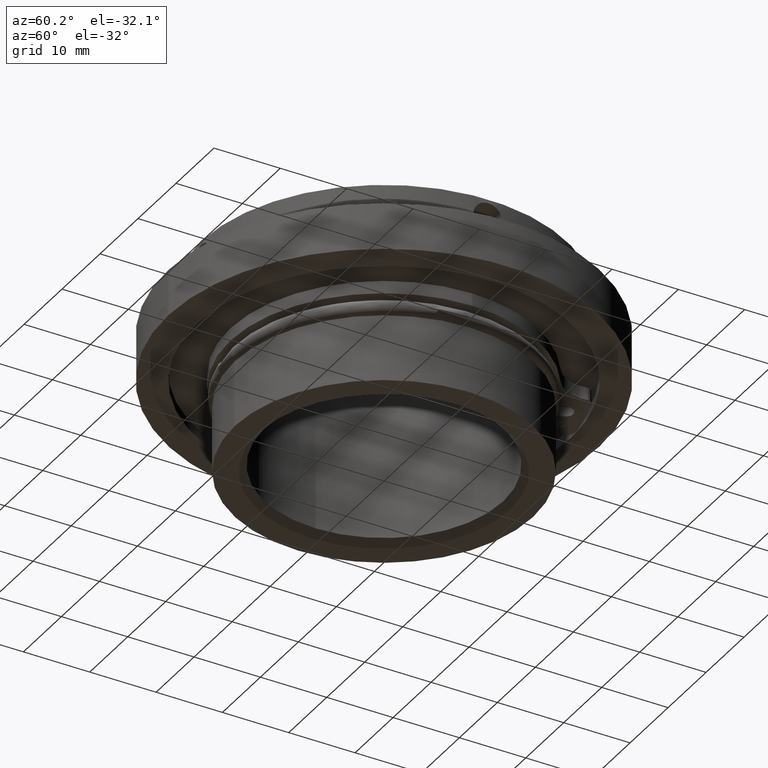
[diagram: clean part render]
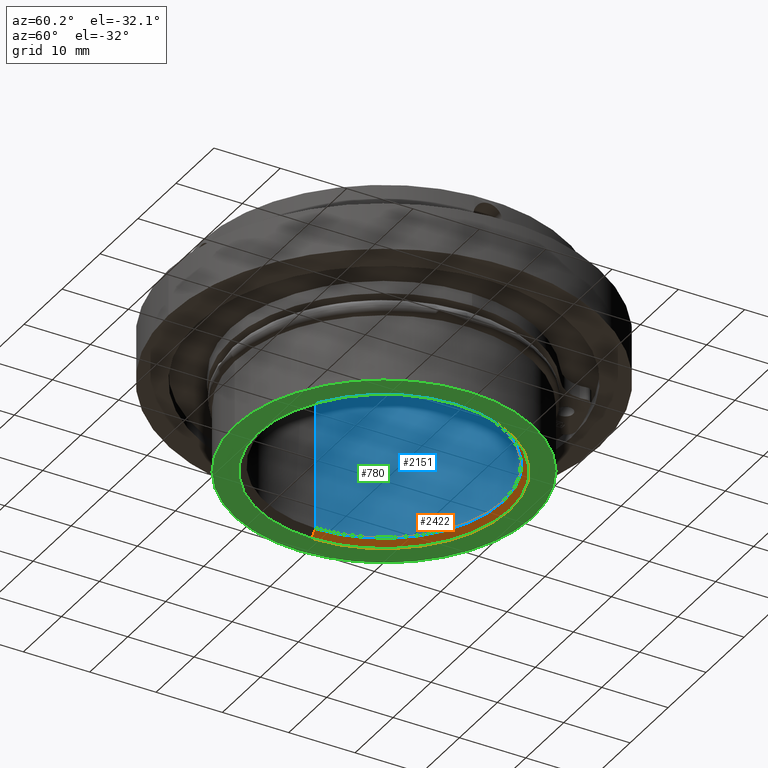
[diagram: same view with three faces highlighted in distinct colors, each labeled with its STEP entity id]
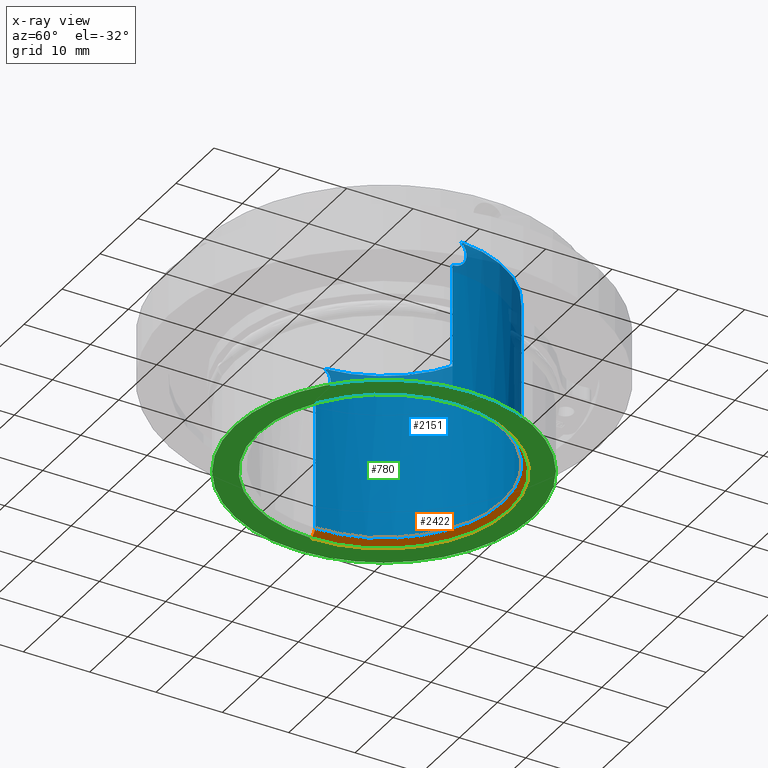
[diagram: x-ray of the same camera — body ghosted, the three highlighted faces saturated]
A machine part, auxiliary view with three faces highlighted in distinct colors.
The next image is the same camera in x-ray (body ghosted, the three faces saturated) — at least one of them is partly hidden behind the body in this view.
Their STEP definitions:

[orange] entity #2422 — the highlighted conical surface has half-angle 45 deg.
#215 = ORIENTED_EDGE ( 'NONE', *, *, #15960, .F. ) ;
#762 = AXIS2_PLACEMENT_3D ( 'NONE', #16104, #8063, #13628 ) ;
#814 = FACE_OUTER_BOUND ( 'NONE', #4468, .T. ) ;
#1090 = CARTESIAN_POINT ( 'NONE',  ( -18.99999999999998224, 0.000000000000000000, -13.50000000000000000 ) ) ;
#1169 = VERTEX_POINT ( 'NONE', #10040 ) ;
#1447 = LINE ( 'NONE', #1090, #16803 ) ;
#1481 = CARTESIAN_POINT ( 'NONE',  ( 18.99999999999998224, 2.326828918379968998E-15, -13.50000000000000000 ) ) ;
#1837 = CARTESIAN_POINT ( 'NONE',  ( 0.000000000000000000, 0.000000000000000000, -13.50000000000000000 ) ) ;
#2111 = CIRCLE ( 'NONE', #12964, 18.99999999999998224 ) ;
#2422 = ADVANCED_FACE ( 'NONE', ( #814 ), #6733, .F. ) ;
#2692 = EDGE_CURVE ( 'NONE', #14178, #1169, #2111, .T. ) ;
#2799 = VERTEX_POINT ( 'NONE', #14723 ) ;
#3476 = EDGE_CURVE ( 'NONE', #5551, #1169, #1447, .T. ) ;
#4468 = EDGE_LOOP ( 'NONE', ( #8090, #215, #9733, #6738 ) ) ;
#5551 = VERTEX_POINT ( 'NONE', #11569 ) ;
#6630 = VECTOR ( 'NONE', #9172, 1000.000000000000114 ) ;
#6733 = CONICAL_SURFACE ( 'NONE', #15072, 18.99999999999998224, 0.7853981633974482790 ) ;
#6738 = ORIENTED_EDGE ( 'NONE', *, *, #2692, .F. ) ;
#7074 = DIRECTION ( 'NONE',  ( -0.000000000000000000, -0.000000000000000000, -1.000000000000000000 ) ) ;
#7747 = DIRECTION ( 'NONE',  ( -0.7071067811865474617, 0.000000000000000000, -0.7071067811865474617 ) ) ;
#7816 = CARTESIAN_POINT ( 'NONE',  ( 18.99999999999998224, 2.326828918379968998E-15, -13.50000000000000000 ) ) ;
#8063 = DIRECTION ( 'NONE',  ( -0.000000000000000000, -0.000000000000000000, -1.000000000000000000 ) ) ;
#8090 = ORIENTED_EDGE ( 'NONE', *, *, #15161, .F. ) ;
#8439 = DIRECTION ( 'NONE',  ( -0.000000000000000000, -1.836970198721029441E-16, 1.000000000000000000 ) ) ;
#9172 = DIRECTION ( 'NONE',  ( 0.7071067811865474617, 8.659560562354932858E-17, -0.7071067811865474617 ) ) ;
#9733 = ORIENTED_EDGE ( 'NONE', *, *, #3476, .T. ) ;
#9962 = CARTESIAN_POINT ( 'NONE',  ( 0.000000000000000000, 0.000000000000000000, -13.50000000000000000 ) ) ;
#10040 = CARTESIAN_POINT ( 'NONE',  ( -18.99999999999998224, 0.000000000000000000, -13.50000000000000000 ) ) ;
#10198 = LINE ( 'NONE', #7816, #6630 ) ;
#11569 = CARTESIAN_POINT ( 'NONE',  ( -18.00000000000000000, 2.204364238465235428E-15, -12.50000000000001599 ) ) ;
#12283 = CIRCLE ( 'NONE', #762, 18.00000000000000000 ) ;
#12412 = DIRECTION ( 'NONE',  ( -1.000000000000000000, 0.000000000000000000, 0.000000000000000000 ) ) ;
#12488 = DIRECTION ( 'NONE',  ( 0.000000000000000000, -1.000000000000000000, -1.826024711554535392E-16 ) ) ;
#12964 = AXIS2_PLACEMENT_3D ( 'NONE', #9962, #8439, #12488 ) ;
#13628 = DIRECTION ( 'NONE',  ( 1.000000000000000000, 0.000000000000000000, 0.000000000000000000 ) ) ;
#14178 = VERTEX_POINT ( 'NONE', #1481 ) ;
#14723 = CARTESIAN_POINT ( 'NONE',  ( 18.00000000000000000, 0.000000000000000000, -12.50000000000001599 ) ) ;
#15072 = AXIS2_PLACEMENT_3D ( 'NONE', #1837, #7074, #12412 ) ;
#15161 = EDGE_CURVE ( 'NONE', #2799, #14178, #10198, .T. ) ;
#15960 = EDGE_CURVE ( 'NONE', #5551, #2799, #12283, .T. ) ;
#16104 = CARTESIAN_POINT ( 'NONE',  ( 0.000000000000000000, 0.000000000000000000, -12.50000000000001599 ) ) ;
#16803 = VECTOR ( 'NONE', #7747, 1000.000000000000114 ) ;

[blue] entity #2151 — the highlighted cylindrical surface (partial cylindrical patch) has radius 18 mm, axis along (-0, -0, 1).
#114 = VERTEX_POINT ( 'NONE', #2804 ) ;
#385 = DIRECTION ( 'NONE',  ( -0.000000000000000000, -0.000000000000000000, 1.000000000000000000 ) ) ;
#509 = VERTEX_POINT ( 'NONE', #14518 ) ;
#517 = CARTESIAN_POINT ( 'NONE',  ( -17.87668520872552946, 2.103715544815742078, 11.41536505703672155 ) ) ;
#640 = CARTESIAN_POINT ( 'NONE',  ( -2.121005960324827910, 17.87463780997915563, 10.15476445650778281 ) ) ;
#762 = AXIS2_PLACEMENT_3D ( 'NONE', #16104, #8063, #13628 ) ;
#810 = CARTESIAN_POINT ( 'NONE',  ( -2.136741198907812223, 17.87275802174629646, 11.28612010279972289 ) ) ;
#998 = CARTESIAN_POINT ( 'NONE',  ( -1.468030887406935214, 17.94098853399827931, 9.095778280645061997 ) ) ;
#1056 = CARTESIAN_POINT ( 'NONE',  ( 8.348798949879847501E-22, 18.00000000000000000, 8.549999999999995381 ) ) ;
#1145 = DIRECTION ( 'NONE',  ( 0.000000000000000000, 0.000000000000000000, 1.000000000000000000 ) ) ;
#1157 = EDGE_CURVE ( 'NONE', #5551, #114, #2759, .T. ) ;
#1199 = CARTESIAN_POINT ( 'NONE',  ( 17.90823195205789631, 1.821483575290850476, 12.02872333276099859 ) ) ;
#1303 = CARTESIAN_POINT ( 'NONE',  ( 17.86748925515128406, 2.180440392875525824, 11.08763631088524981 ) ) ;
#1368 = CARTESIAN_POINT ( 'NONE',  ( 17.87668450630524219, 2.103721381708066218, 11.41533820982690806 ) ) ;
#1610 = CARTESIAN_POINT ( 'NONE',  ( -18.00000000000000000, 2.724161556077255230E-15, 8.549999999999991829 ) ) ;
#1785 = CARTESIAN_POINT ( 'NONE',  ( 17.95018310061417566, 1.353609908119516758, 8.992204948910826445 ) ) ;
#1949 = CARTESIAN_POINT ( 'NONE',  ( -17.90000623088349840, 1.896159339382627040, 11.87819012829362997 ) ) ;
#1960 = CARTESIAN_POINT ( 'NONE',  ( 17.96777901029949120, 1.108601715829148793, 8.828281606666486425 ) ) ;
#1996 = EDGE_CURVE ( 'NONE', #16202, #4096, #7165, .T. ) ;
#2014 = CARTESIAN_POINT ( 'NONE',  ( -1.896872426822907132, 17.89985229099267627, 9.629756288619308435 ) ) ;
#2022 = EDGE_CURVE ( 'NONE', #16202, #509, #4620, .T. ) ;
#2131 = CARTESIAN_POINT ( 'NONE',  ( -17.86504967807255184, 2.199999999999934452, 10.92048124366178641 ) ) ;
#2151 = ADVANCED_FACE ( 'NONE', ( #6560 ), #17282, .F. ) ;
#2270 = CARTESIAN_POINT ( 'NONE',  ( 1.969670562485100751, 17.89241986958555231, 11.83245159830164184 ) ) ;
#2325 = CARTESIAN_POINT ( 'NONE',  ( 1.462549439204747337, 17.94066804085520772, 9.102610017856298086 ) ) ;
#2367 = CARTESIAN_POINT ( 'NONE',  ( -0.4582411792507857240, 17.99546813770509956, 8.586284826820818949 ) ) ;
#2759 = LINE ( 'NONE', #12816, #15592 ) ;
#2799 = VERTEX_POINT ( 'NONE', #14723 ) ;
#2804 = CARTESIAN_POINT ( 'NONE',  ( -18.00000000000000000, 2.724161556077255230E-15, 8.549999999999991829 ) ) ;
#2833 = VERTEX_POINT ( 'NONE', #16582 ) ;
#3054 = AXIS2_PLACEMENT_3D ( 'NONE', #8466, #13705, #15094 ) ;
#3156 = ORIENTED_EDGE ( 'NONE', *, *, #1996, .T. ) ;
#3345 = CARTESIAN_POINT ( 'NONE',  ( -1.836554928278411047, 17.90619095902293623, 9.533455921472059558 ) ) ;
#3353 = CARTESIAN_POINT ( 'NONE',  ( 17.87863036808951023, 2.087500648652110158, 10.04070509176075099 ) ) ;
#3598 = AXIS2_PLACEMENT_3D ( 'NONE', #17432, #1145, #10579 ) ;
#3603 = CARTESIAN_POINT ( 'NONE',  ( 1.375770858389466778, 17.94758642147787242, 9.029468407636910499 ) ) ;
#3667 = CARTESIAN_POINT ( 'NONE',  ( 1.190729432593061521, 17.96081198692217384, 8.896587516641329074 ) ) ;
#3687 = CARTESIAN_POINT ( 'NONE',  ( 1.333229162597331818, 17.95055709441910352, 12.50000000000000000 ) ) ;
#3726 = CARTESIAN_POINT ( 'NONE',  ( 1.091630714041751826, 17.96715769213867020, 8.836532358763793837 ) ) ;
#3989 = CARTESIAN_POINT ( 'NONE',  ( 8.348798949879847501E-22, 18.00000000000000000, 8.549999999999995381 ) ) ;
#4096 = VERTEX_POINT ( 'NONE', #3687 ) ;
#4472 = CARTESIAN_POINT ( 'NONE',  ( 18.00000000000000000, 9.599631874695406005E-29, 8.549999999999998934 ) ) ;
#4474 = ORIENTED_EDGE ( 'NONE', *, *, #2022, .F. ) ;
#4620 = B_SPLINE_CURVE_WITH_KNOTS ( 'NONE', 3,
 ( #17486, #17271, #1199, #6514, #1368, #1303, #14668, #7937 ),
 .UNSPECIFIED., .F., .F.,
 ( 4, 2, 2, 4 ),
 ( 0.008311002092486302964, 0.009319350404970835194, 0.009823524561213103912, 0.01032769871745537263 ),
 .UNSPECIFIED. ) ;
#4767 = CARTESIAN_POINT ( 'NONE',  ( -17.86504967807255539, 2.199999999999935785, 10.74999999999999289 ) ) ;
#4768 = CARTESIAN_POINT ( 'NONE',  ( -1.935778818424976233, 17.89609300996209384, 11.82021708219082790 ) ) ;
#4816 = CARTESIAN_POINT ( 'NONE',  ( -17.86748824092745380, 2.180448831246668551, 11.08759835150650375 ) ) ;
#4971 = CARTESIAN_POINT ( 'NONE',  ( 8.348798949879847501E-22, 18.00000000000000000, 8.549999999999995381 ) ) ;
#5078 = CARTESIAN_POINT ( 'NONE',  ( -0.2275684846664077499, 18.00000000000000711, 8.550000000000000711 ) ) ;
#5093 = CARTESIAN_POINT ( 'NONE',  ( 1.699509267967329151, 17.92335262853038458, 12.22095124676656575 ) ) ;
#5551 = VERTEX_POINT ( 'NONE', #11569 ) ;
#5679 = CARTESIAN_POINT ( 'NONE',  ( -17.89746396738225798, 1.921721143295167522, 9.641403756792257695 ) ) ;
#5741 = CARTESIAN_POINT ( 'NONE',  ( -17.97404152278933864, 0.9754923159272775868, 8.772837044479874891 ) ) ;
#5892 = EDGE_CURVE ( 'NONE', #2799, #13930, #7969, .T. ) ;
#5955 = CARTESIAN_POINT ( 'NONE',  ( -2.161952449049019176, 17.86970127218466686, 11.17301647235925799 ) ) ;
#5964 = CARTESIAN_POINT ( 'NONE',  ( 17.87357336357803206, 2.129828136978313857, 10.18045216000459874 ) ) ;
#6082 = EDGE_CURVE ( 'NONE', #16424, #11052, #11568, .T. ) ;
#6093 = CARTESIAN_POINT ( 'NONE',  ( 17.89859310728108355, 1.909657467179325385, 9.648251813286863765 ) ) ;
#6146 = CARTESIAN_POINT ( 'NONE',  ( -2.036043903350609696, 17.88460495072941470, 11.61421992951604842 ) ) ;
#6420 = ORIENTED_EDGE ( 'NONE', *, *, #1157, .F. ) ;
#6480 = CIRCLE ( 'NONE', #3054, 18.00000000000000000 ) ;
#6514 = CARTESIAN_POINT ( 'NONE',  ( 17.88355610218530956, 2.045498632590802224, 11.57714526430958735 ) ) ;
#6560 = FACE_OUTER_BOUND ( 'NONE', #10001, .T. ) ;
#6646 = EDGE_CURVE ( 'NONE', #16424, #2833, #6480, .T. ) ;
#6878 = B_SPLINE_CURVE_WITH_KNOTS ( 'NONE', 3,
 ( #6903, #12531, #11441, #5964, #3353, #11375, #6093, #7247, #7361, #1785, #1960, #12663, #15347, #4472 ),
 .UNSPECIFIED., .F., .F.,
 ( 4, 2, 2, 2, 2, 2, 4 ),
 ( 0.01032769871745537263, 0.01075769001299087431, 0.01118768130852637599, 0.01161767260406187594, 0.01204766389959737762, 0.01290764649066837924, 0.01376762908173938087 ),
 .UNSPECIFIED. ) ;
#6903 = CARTESIAN_POINT ( 'NONE',  ( 17.86504967807256605, 2.200000000000060574, 10.75000000000000000 ) ) ;
#7085 = CARTESIAN_POINT ( 'NONE',  ( -17.87250171077296557, 2.141474075199391702, 10.17027026271642853 ) ) ;
#7143 = CARTESIAN_POINT ( 'NONE',  ( -17.98651306451688470, 0.7092966243764911027, 8.662499841973081871 ) ) ;
#7165 = CIRCLE ( 'NONE', #3598, 18.00000000000000000 ) ;
#7247 = CARTESIAN_POINT ( 'NONE',  ( 17.91489302995655919, 1.750152732528736044, 9.409251656088434501 ) ) ;
#7298 = CARTESIAN_POINT ( 'NONE',  ( -2.201360207082837750, 17.86488219198005467, 10.83394775781544261 ) ) ;
#7340 = DIRECTION ( 'NONE',  ( -0.000000000000000000, -0.000000000000000000, 1.000000000000000000 ) ) ;
#7355 = CARTESIAN_POINT ( 'NONE',  ( -2.048201911880996207, 17.88312646183091204, 9.938926289331877939 ) ) ;
#7361 = CARTESIAN_POINT ( 'NONE',  ( 17.92381854039586742, 1.657426382435922996, 9.296224366329603583 ) ) ;
#7551 = CARTESIAN_POINT ( 'NONE',  ( -1.333229162597360906, 17.95055709441909642, 12.49999999999999645 ) ) ;
#7555 = CARTESIAN_POINT ( 'NONE',  ( 0.7827206121609723288, 17.98330073319893074, 8.690799598566567141 ) ) ;
#7676 = CARTESIAN_POINT ( 'NONE',  ( 1.333229162597331818, 17.95055709441910352, 12.50000000000000000 ) ) ;
#7737 = CARTESIAN_POINT ( 'NONE',  ( 2.203159445856750498, 17.86466065121274482, 10.94794864789947653 ) ) ;
#7874 = CARTESIAN_POINT ( 'NONE',  ( 0.000000000000000000, 0.000000000000000000, -13.50000000000000533 ) ) ;
#7937 = CARTESIAN_POINT ( 'NONE',  ( 17.86504967807256605, 2.200000000000060574, 10.75000000000000000 ) ) ;
#7969 = LINE ( 'NONE', #15158, #14673 ) ;
#8063 = DIRECTION ( 'NONE',  ( -0.000000000000000000, -0.000000000000000000, -1.000000000000000000 ) ) ;
#8328 = CARTESIAN_POINT ( 'NONE',  ( -17.94148444521034591, 1.453782261044804569, 9.092579395840774126 ) ) ;
#8463 = CARTESIAN_POINT ( 'NONE',  ( -17.86504967807255539, 2.199999999999935785, 10.74999999999999289 ) ) ;
#8466 = CARTESIAN_POINT ( 'NONE',  ( 0.000000000000000000, 0.000000000000000000, 12.50000000000000000 ) ) ;
#8503 = CARTESIAN_POINT ( 'NONE',  ( 17.95055709441909642, 1.333229162597419526, 12.50000000000000178 ) ) ;
#8642 = B_SPLINE_CURVE_WITH_KNOTS ( 'NONE', 3,
 ( #4971, #13034, #10392, #7555, #14376, #3726, #3667, #3603, #2325, #16954, #14491, #9077, #8906, #13090, #8969, #7737, #15716, #2270, #5093, #7676 ),
 .UNSPECIFIED., .F., .F.,
 ( 4, 2, 2, 2, 2, 2, 2, 2, 2, 4 ),
 ( 0.005458323215155671225, 0.006140424434240193512, 0.006481475043782454655, 0.006822525653324714931, 0.007163576262866976074, 0.007504626872409237218, 0.008186728091493754300, 0.008868829310578271383, 0.009550930529662788465, 0.01091513296783182090 ),
 .UNSPECIFIED. ) ;
#8644 = CARTESIAN_POINT ( 'NONE',  ( -1.516419047290170852, 17.93695116033690695, 12.36043765910552317 ) ) ;
#8771 = CARTESIAN_POINT ( 'NONE',  ( -17.95055709441910707, 1.333229162597260320, 12.49999999999999645 ) ) ;
#8906 = CARTESIAN_POINT ( 'NONE',  ( 2.010689180469130477, 17.88749832043404453, 9.828196977794139144 ) ) ;
#8955 = CARTESIAN_POINT ( 'NONE',  ( -1.099192581941223823, 17.96735817896565734, 8.830797079261344606 ) ) ;
#8969 = CARTESIAN_POINT ( 'NONE',  ( 2.196361882769958029, 17.86549764789025119, 10.48715082083395522 ) ) ;
#9077 = CARTESIAN_POINT ( 'NONE',  ( 1.904311989969150520, 17.89950337840663863, 9.624953043978610623 ) ) ;
#9352 = ORIENTED_EDGE ( 'NONE', *, *, #11475, .F. ) ;
#9374 = ORIENTED_EDGE ( 'NONE', *, *, #5892, .T. ) ;
#9841 = CARTESIAN_POINT ( 'NONE',  ( -17.86504967807255184, 2.199999999999934897, 10.45919042748056604 ) ) ;
#9939 = CARTESIAN_POINT ( 'NONE',  ( -17.90967461306062702, 1.804253324600453290, 12.02021527782135379 ) ) ;
#10001 = EDGE_LOOP ( 'NONE', ( #6420, #11674, #9374, #11429, #4474, #3156, #10791, #12125, #13091, #14977, #9352 ) ) ;
#10002 = CARTESIAN_POINT ( 'NONE',  ( -17.94061369781577753, 1.467106753523043094, 12.39800599517684532 ) ) ;
#10003 = CARTESIAN_POINT ( 'NONE',  ( -2.187565956201548811, 17.86658709404537504, 10.49001902712904055 ) ) ;
#10055 = CARTESIAN_POINT ( 'NONE',  ( -2.002773384181987915, 17.88831282750301810, 9.832410904521402983 ) ) ;
#10392 = CARTESIAN_POINT ( 'NONE',  ( 0.4576624055052368467, 17.99548755638719655, 8.586120030489654553 ) ) ;
#10436 = CARTESIAN_POINT ( 'NONE',  ( -0.8908734258412319695, 17.97924367187481209, 8.725650013427305396 ) ) ;
#10579 = DIRECTION ( 'NONE',  ( -1.000000000000000000, 0.000000000000000000, 0.000000000000000000 ) ) ;
#10791 = ORIENTED_EDGE ( 'NONE', *, *, #11598, .F. ) ;
#10975 = CARTESIAN_POINT ( 'NONE',  ( -17.99153682787057562, 0.5695483412377122523, 8.620171958592148798 ) ) ;
#11052 = VERTEX_POINT ( 'NONE', #3989 ) ;
#11367 = CARTESIAN_POINT ( 'NONE',  ( -17.93012575986585944, 1.588195529660903826, 12.28180020593669397 ) ) ;
#11375 = CARTESIAN_POINT ( 'NONE',  ( 17.89116826695707374, 1.977164849051144868, 9.774511719878880456 ) ) ;
#11429 = ORIENTED_EDGE ( 'NONE', *, *, #14265, .F. ) ;
#11433 = CARTESIAN_POINT ( 'NONE',  ( -2.194084290345778232, 17.86578450770985071, 10.94742202180655433 ) ) ;
#11441 = CARTESIAN_POINT ( 'NONE',  ( 17.86682322784958288, 2.185731095319219719, 10.46167342463347261 ) ) ;
#11475 = EDGE_CURVE ( 'NONE', #114, #14747, #12580, .T. ) ;
#11506 = AXIS2_PLACEMENT_3D ( 'NONE', #7874, #15054, #14885 ) ;
#11568 = B_SPLINE_CURVE_WITH_KNOTS ( 'NONE', 3,
 ( #12834, #8644, #14058, #4768, #6146, #810, #5955, #11433, #7298, #16700, #10003, #15406, #640, #7355, #10055, #2014, #3345, #14356, #998, #8955, #10436, #2367, #5078, #1056 ),
 .UNSPECIFIED., .F., .F.,
 ( 4, 2, 2, 2, 2, 2, 2, 2, 2, 2, 2, 4 ),
 ( 2.319381889017657412E-17, 0.0006822904018944773346, 0.001364580803788931467, 0.001705726004736158588, 0.002046871205683385275, 0.002388016406630612612, 0.002729161607577839516, 0.003070306808525066419, 0.003411452009472293757, 0.004093742411366753202, 0.004776032813261212213, 0.005458323215155671225 ),
 .UNSPECIFIED. ) ;
#11569 = CARTESIAN_POINT ( 'NONE',  ( -18.00000000000000000, 2.204364238465235428E-15, -12.50000000000001599 ) ) ;
#11598 = EDGE_CURVE ( 'NONE', #11052, #4096, #8642, .T. ) ;
#11674 = ORIENTED_EDGE ( 'NONE', *, *, #15960, .T. ) ;
#12125 = ORIENTED_EDGE ( 'NONE', *, *, #6082, .F. ) ;
#12283 = CIRCLE ( 'NONE', #762, 18.00000000000000000 ) ;
#12486 = CARTESIAN_POINT ( 'NONE',  ( -18.00000000000000000, 0.1453808865314425158, 8.549999999999995381 ) ) ;
#12531 = CARTESIAN_POINT ( 'NONE',  ( 17.86504967807253053, 2.200000000000060130, 10.60461845495999000 ) ) ;
#12580 = B_SPLINE_CURVE_WITH_KNOTS ( 'NONE', 3,
 ( #1610, #12486, #16367, #10975, #7143, #5741, #13893, #13670, #8328, #16541, #5679, #7085, #9841, #16483 ),
 .UNSPECIFIED., .F., .F.,
 ( 4, 2, 2, 2, 2, 2, 4 ),
 ( 0.01032769178712296572, 0.01075768305061386952, 0.01118767431410477332, 0.01161766557759567713, 0.01204765684108657919, 0.01290763936806838680, 0.01376762189505019267 ),
 .UNSPECIFIED. ) ;
#12663 = CARTESIAN_POINT ( 'NONE',  ( 17.99260939587999886, 0.5797305016892855267, 8.608525766434087956 ) ) ;
#12715 = EDGE_CURVE ( 'NONE', #14747, #2833, #14423, .T. ) ;
#12816 = CARTESIAN_POINT ( 'NONE',  ( -18.00000000000000000, 2.204364238465235428E-15, -13.50000000000000533 ) ) ;
#12834 = CARTESIAN_POINT ( 'NONE',  ( -1.333229162597360906, 17.95055709441909642, 12.49999999999999645 ) ) ;
#13034 = CARTESIAN_POINT ( 'NONE',  ( 0.2275053853684223248, 18.00000000000000000, 8.549999999999997158 ) ) ;
#13090 = CARTESIAN_POINT ( 'NONE',  ( 2.157574855787253831, 17.87037598613026645, 10.26269872370566105 ) ) ;
#13091 = ORIENTED_EDGE ( 'NONE', *, *, #6646, .T. ) ;
#13628 = DIRECTION ( 'NONE',  ( 1.000000000000000000, 0.000000000000000000, 0.000000000000000000 ) ) ;
#13670 = CARTESIAN_POINT ( 'NONE',  ( -17.95039621641853245, 1.340754299832371821, 8.999851761246290494 ) ) ;
#13705 = DIRECTION ( 'NONE',  ( 0.000000000000000000, 0.000000000000000000, 1.000000000000000000 ) ) ;
#13893 = CARTESIAN_POINT ( 'NONE',  ( -17.96664927720232185, 1.101753225063047514, 8.840345376463345062 ) ) ;
#13930 = VERTEX_POINT ( 'NONE', #14029 ) ;
#14029 = CARTESIAN_POINT ( 'NONE',  ( 18.00000000000000000, 9.599631874695406005E-29, 8.549999999999998934 ) ) ;
#14058 = CARTESIAN_POINT ( 'NONE',  ( -1.673405646426277427, 17.92253046301179253, 12.19648462811897893 ) ) ;
#14265 = EDGE_CURVE ( 'NONE', #509, #13930, #6878, .T. ) ;
#14356 = CARTESIAN_POINT ( 'NONE',  ( -1.633879385185134536, 17.92620631413635124, 9.259331642179441602 ) ) ;
#14376 = CARTESIAN_POINT ( 'NONE',  ( 0.8878497849491719940, 17.97837967975375761, 8.733880264155160944 ) ) ;
#14423 = B_SPLINE_CURVE_WITH_KNOTS ( 'NONE', 3,
 ( #4767, #2131, #4816, #517, #16812, #1949, #9939, #11367, #10002, #8771 ),
 .UNSPECIFIED., .F., .F.,
 ( 4, 2, 2, 2, 4 ),
 ( 0.000000000000000000, 0.0005041474029107971024, 0.001008294805821594205, 0.001512442208732391741, 0.002016589611643189277 ),
 .UNSPECIFIED. ) ;
#14491 = CARTESIAN_POINT ( 'NONE',  ( 1.700590355051132985, 17.91961631234022079, 9.349633567095605002 ) ) ;
#14518 = CARTESIAN_POINT ( 'NONE',  ( 17.86504967807256605, 2.200000000000060574, 10.75000000000000000 ) ) ;
#14668 = CARTESIAN_POINT ( 'NONE',  ( 17.86504967807254118, 2.200000000000061018, 10.92046302696071614 ) ) ;
#14673 = VECTOR ( 'NONE', #385, 1000.000000000000000 ) ;
#14723 = CARTESIAN_POINT ( 'NONE',  ( 18.00000000000000000, 0.000000000000000000, -12.50000000000001599 ) ) ;
#14747 = VERTEX_POINT ( 'NONE', #8463 ) ;
#14885 = DIRECTION ( 'NONE',  ( 1.000000000000000000, 0.000000000000000000, 0.000000000000000000 ) ) ;
#14977 = ORIENTED_EDGE ( 'NONE', *, *, #12715, .F. ) ;
#15054 = DIRECTION ( 'NONE',  ( -0.000000000000000000, -0.000000000000000000, 1.000000000000000000 ) ) ;
#15094 = DIRECTION ( 'NONE',  ( -1.000000000000000000, 1.776356839400250465E-15, 0.000000000000000000 ) ) ;
#15158 = CARTESIAN_POINT ( 'NONE',  ( 18.00000000000000000, 0.000000000000000000, -13.50000000000000533 ) ) ;
#15347 = CARTESIAN_POINT ( 'NONE',  ( 18.00000000000000000, 0.2908091080977506793, 8.549999999999984723 ) ) ;
#15406 = CARTESIAN_POINT ( 'NONE',  ( -2.148903332374839437, 17.87127845650526226, 10.26497485931630749 ) ) ;
#15592 = VECTOR ( 'NONE', #7340, 1000.000000000000000 ) ;
#15716 = CARTESIAN_POINT ( 'NONE',  ( 2.171145793240698563, 17.86870724683401335, 11.17302699835797952 ) ) ;
#15960 = EDGE_CURVE ( 'NONE', #5551, #2799, #12283, .T. ) ;
#16104 = CARTESIAN_POINT ( 'NONE',  ( 0.000000000000000000, 0.000000000000000000, -12.50000000000001599 ) ) ;
#16202 = VERTEX_POINT ( 'NONE', #8503 ) ;
#16367 = CARTESIAN_POINT ( 'NONE',  ( -17.99824021636281302, 0.2883259539657593296, 8.564268785224586011 ) ) ;
#16424 = VERTEX_POINT ( 'NONE', #7551 ) ;
#16483 = CARTESIAN_POINT ( 'NONE',  ( -17.86504967807255539, 2.199999999999935785, 10.74999999999999289 ) ) ;
#16541 = CARTESIAN_POINT ( 'NONE',  ( -17.91511994240790173, 1.757801265829291637, 9.396397991900983016 ) ) ;
#16582 = CARTESIAN_POINT ( 'NONE',  ( -17.95055709441910707, 1.333229162597260320, 12.49999999999999645 ) ) ;
#16700 = CARTESIAN_POINT ( 'NONE',  ( -2.198224990913085541, 17.86526824270990588, 10.60563630409551017 ) ) ;
#16812 = CARTESIAN_POINT ( 'NONE',  ( -17.88355594785573288, 2.045499930557277857, 11.57714160818889049 ) ) ;
#16954 = CARTESIAN_POINT ( 'NONE',  ( 1.624684261124892393, 17.92671251696570067, 9.262268281228564604 ) ) ;
#17271 = CARTESIAN_POINT ( 'NONE',  ( 17.93067528837086044, 1.600917197498860522, 12.29606314593770833 ) ) ;
#17282 = CYLINDRICAL_SURFACE ( 'NONE', #11506, 18.00000000000000000 ) ;
#17432 = CARTESIAN_POINT ( 'NONE',  ( 0.000000000000000000, 0.000000000000000000, 12.50000000000000000 ) ) ;
#17486 = CARTESIAN_POINT ( 'NONE',  ( 17.95055709441909642, 1.333229162597419526, 12.50000000000000178 ) ) ;

[green] entity #780 — the highlighted planar face has unit normal (0, -0, 1).
#780 = ADVANCED_FACE ( 'NONE', ( #16430, #1930 ), #951, .F. ) ;
#951 = PLANE ( 'NONE',  #5621 ) ;
#1125 = CARTESIAN_POINT ( 'NONE',  ( 0.000000000000000000, 0.000000000000000000, -13.50000000000000000 ) ) ;
#1144 = EDGE_CURVE ( 'NONE', #1169, #14178, #11819, .T. ) ;
#1169 = VERTEX_POINT ( 'NONE', #10040 ) ;
#1481 = CARTESIAN_POINT ( 'NONE',  ( 18.99999999999998224, 2.326828918379968998E-15, -13.50000000000000000 ) ) ;
#1555 = EDGE_CURVE ( 'NONE', #15651, #3378, #9900, .T. ) ;
#1930 = FACE_OUTER_BOUND ( 'NONE', #12094, .T. ) ;
#2111 = CIRCLE ( 'NONE', #12964, 18.99999999999998224 ) ;
#2692 = EDGE_CURVE ( 'NONE', #14178, #1169, #2111, .T. ) ;
#2854 = EDGE_LOOP ( 'NONE', ( #3042, #10057 ) ) ;
#3042 = ORIENTED_EDGE ( 'NONE', *, *, #1144, .T. ) ;
#3153 = DIRECTION ( 'NONE',  ( 0.000000000000000000, -1.000000000000000000, -1.826024711554535392E-16 ) ) ;
#3378 = VERTEX_POINT ( 'NONE', #13218 ) ;
#4466 = DIRECTION ( 'NONE',  ( 0.000000000000000000, -1.000000000000000000, -1.836970198721029441E-16 ) ) ;
#4641 = CARTESIAN_POINT ( 'NONE',  ( 0.000000000000000000, 6.096316214716755445E-32, -13.50000000000000000 ) ) ;
#5213 = DIRECTION ( 'NONE',  ( 0.000000000000000000, -1.000000000000000000, -1.541976423090494894E-16 ) ) ;
#5621 = AXIS2_PLACEMENT_3D ( 'NONE', #4641, #12469, #4466 ) ;
#5918 = CARTESIAN_POINT ( 'NONE',  ( 0.000000000000000000, 0.000000000000000000, -13.50000000000000000 ) ) ;
#6005 = CARTESIAN_POINT ( 'NONE',  ( 0.000000000000000000, 0.000000000000000000, -13.50000000000000000 ) ) ;
#6973 = DIRECTION ( 'NONE',  ( -0.000000000000000000, -1.836970198721029441E-16, 1.000000000000000000 ) ) ;
#7725 = EDGE_CURVE ( 'NONE', #3378, #15651, #8131, .T. ) ;
#8131 = CIRCLE ( 'NONE', #16020, 22.50000000000000355 ) ;
#8439 = DIRECTION ( 'NONE',  ( -0.000000000000000000, -1.836970198721029441E-16, 1.000000000000000000 ) ) ;
#8886 = AXIS2_PLACEMENT_3D ( 'NONE', #5918, #6973, #15073 ) ;
#9328 = CARTESIAN_POINT ( 'NONE',  ( 2.755455298081545567E-15, 22.50000000000000355, -13.49999999999999645 ) ) ;
#9900 = CIRCLE ( 'NONE', #8886, 22.50000000000000355 ) ;
#9920 = DIRECTION ( 'NONE',  ( -0.000000000000000000, -1.836970198721029441E-16, 1.000000000000000000 ) ) ;
#9962 = CARTESIAN_POINT ( 'NONE',  ( 0.000000000000000000, 0.000000000000000000, -13.50000000000000000 ) ) ;
#10040 = CARTESIAN_POINT ( 'NONE',  ( -18.99999999999998224, 0.000000000000000000, -13.50000000000000000 ) ) ;
#10057 = ORIENTED_EDGE ( 'NONE', *, *, #2692, .T. ) ;
#10067 = ORIENTED_EDGE ( 'NONE', *, *, #1555, .F. ) ;
#10369 = AXIS2_PLACEMENT_3D ( 'NONE', #6005, #9920, #3153 ) ;
#11819 = CIRCLE ( 'NONE', #10369, 18.99999999999998224 ) ;
#12094 = EDGE_LOOP ( 'NONE', ( #17011, #10067 ) ) ;
#12469 = DIRECTION ( 'NONE',  ( 0.000000000000000000, -1.836970198721029441E-16, 1.000000000000000000 ) ) ;
#12488 = DIRECTION ( 'NONE',  ( 0.000000000000000000, -1.000000000000000000, -1.826024711554535392E-16 ) ) ;
#12964 = AXIS2_PLACEMENT_3D ( 'NONE', #9962, #8439, #12488 ) ;
#13218 = CARTESIAN_POINT ( 'NONE',  ( 0.000000000000000000, -22.50000000000000355, -13.50000000000000355 ) ) ;
#14178 = VERTEX_POINT ( 'NONE', #1481 ) ;
#14654 = DIRECTION ( 'NONE',  ( -0.000000000000000000, -1.836970198721029441E-16, 1.000000000000000000 ) ) ;
#15073 = DIRECTION ( 'NONE',  ( 0.000000000000000000, -1.000000000000000000, -1.541976423090494894E-16 ) ) ;
#15651 = VERTEX_POINT ( 'NONE', #9328 ) ;
#16020 = AXIS2_PLACEMENT_3D ( 'NONE', #1125, #14654, #5213 ) ;
#16430 = FACE_BOUND ( 'NONE', #2854, .T. ) ;
#17011 = ORIENTED_EDGE ( 'NONE', *, *, #7725, .F. ) ;